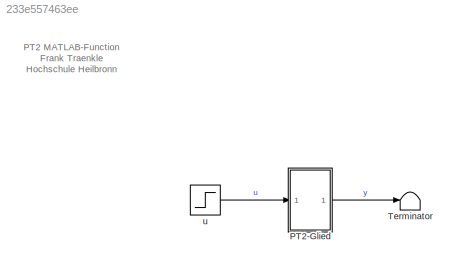
MODEL slx_233e557463ee
KIND model
CONFIG AbsTol = auto
CONFIG EnableMultiTasking = on
CONFIG FixedStep = P_dt
CONFIG InitFcn = pt2_data;
CONFIG MaxStep = auto
CONFIG MinStep = auto
CONFIG RelTol = 1e-3
CONFIG SampleTimeConstraint = Unconstrained
CONFIG Solver = ode4
CONFIG SolverName = ode4
CONFIG StartTime = 0.0
CONFIG StopTime = 20e-3
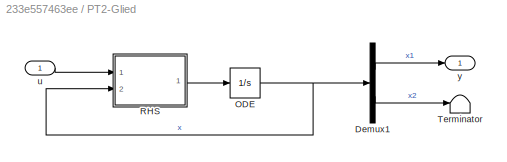
BLOCK [SubSystem] PT2-Glied
  Ports = [1, 1]
  RequestExecContextInheritance = off
BLOCK [Demux] PT2-Glied/Demux1
  Outputs = 2
  Ports = [1, 2]
BLOCK [Integrator] PT2-Glied/ODE
  InitialCondition = [ P_x0 ; P_v0 ]
  Ports = [1, 1]
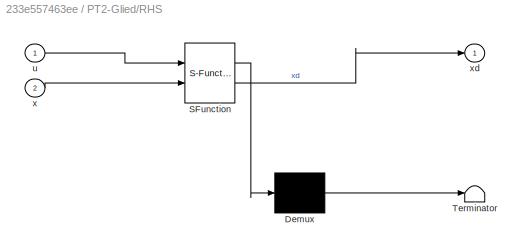
BLOCK [SubSystem] PT2-Glied/RHS
  ErrorFcn = Stateflow.Translate.translate
  PermitHierarchicalResolution = ExplicitOnly
  Ports = [2, 1]
  RequestExecContextInheritance = off
  SFBlockType = MATLAB Function
  TreatAsAtomicUnit = on
BLOCK [Demux] PT2-Glied/RHS/ Demux 
  Outputs = 1
  Ports = [1, 1]
BLOCK [S-Function] PT2-Glied/RHS/ SFunction 
  EnableBusSupport = on
  FunctionName = sf_sfun
  Parameters = P_D,P_T,P_k
  PortCounts = [2 2]
  Ports = [2, 2]
  SFcnIsStateOwnerBlock = off
  SFunctionDeploymentMode = off
  Tag = Stateflow S-Function pt2_matlabfun 2
BLOCK [Terminator] PT2-Glied/RHS/ Terminator 
BLOCK [Inport] PT2-Glied/RHS/u
BLOCK [Inport] PT2-Glied/RHS/x
  Port = 2
BLOCK [Outport] PT2-Glied/RHS/xd
BLOCK [Terminator] PT2-Glied/Terminator
BLOCK [Inport] PT2-Glied/u
BLOCK [Outport] PT2-Glied/y
BLOCK [Terminator] Terminator
BLOCK [Step] u
  SampleTime = 0
  Time = 0
ANNOTATION (root): PT2 MATLAB-Function Frank Traenkle Hochschule Heilbronn
LINE PT2-Glied/Demux1:1 -> PT2-Glied/y:1
LINE PT2-Glied/Demux1:2 -> PT2-Glied/Terminator:1
NET PT2-Glied/ODE:1 -> PT2-Glied/Demux1:1, PT2-Glied/RHS:2
LINE PT2-Glied/RHS:1 -> PT2-Glied/ODE:1
LINE PT2-Glied/u:1 -> PT2-Glied/RHS:1
LINE PT2-Glied:1 -> Terminator:1
LINE u:1 -> PT2-Glied:1
note: NET lines group one-source signal fan-out (src -> all destinations, sorted); 1:1 wires keep LINE
CHART PT2-Glied/RHS states=1 transitions=1
  STATE_LABEL 'eML_blk_kernel()'
  STATE_LABEL 'SCRIPT:\nfunction xd = f(u, x, P_k, P_T, P_D)\n%#codegen\nxd = [ ...\n    x(2) ; ...\n    (-x(1) - 2*P_D*P_T * x(2) + P_k * u) / (P_T * P_T) ...\n    ];\nend'
